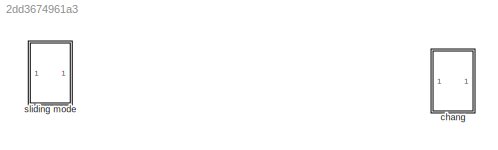
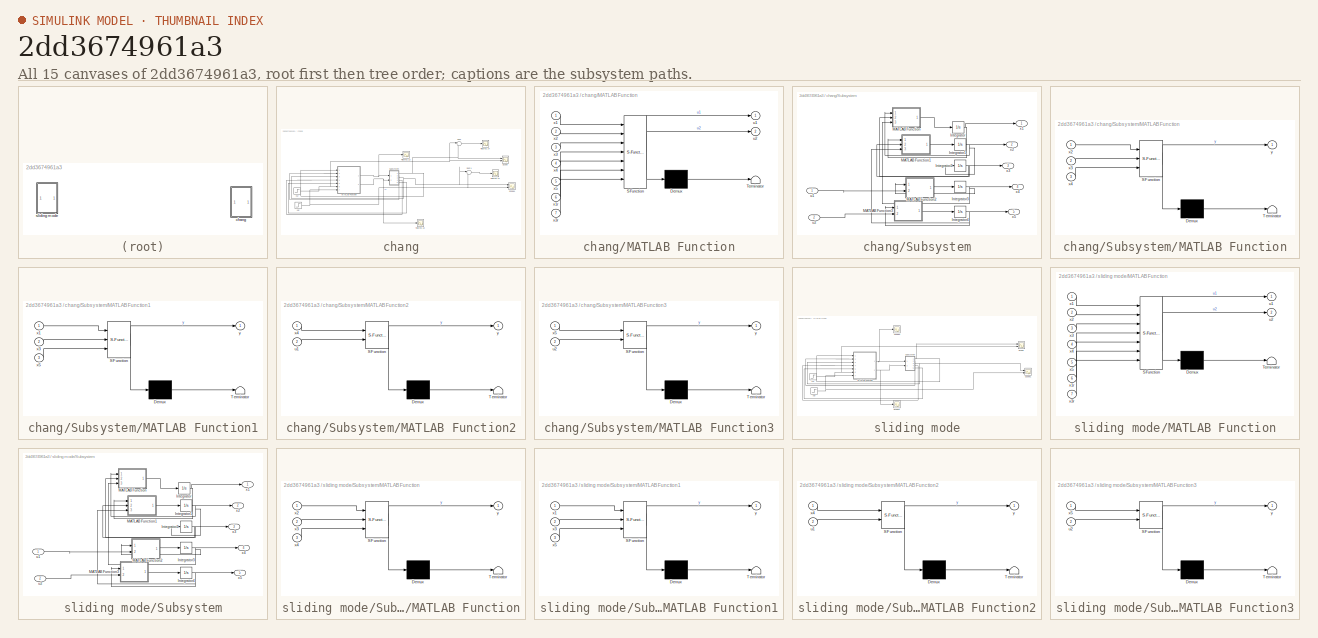
[diagram: thumbnail index - all 15 canvases of the model, root first then tree order]
MODEL slx_2dd3674961a3
KIND model
CONFIG AbsTol = auto
CONFIG EnableMultiTasking = off
CONFIG FixedStep = auto
CONFIG MaxStep = auto
CONFIG MinStep = auto
CONFIG RelTol = 1e-3
CONFIG SampleTimeConstraint = Unconstrained
CONFIG Solver = VariableStepAuto
CONFIG SolverName = VariableStepAuto
CONFIG StartTime = 0.0
CONFIG StopTime = 100
BLOCK [SubSystem] chang
  Ports = []
  RequestExecContextInheritance = off
BLOCK [Scope] chang/Figure3.13
  Floating = off
  NumInputPorts = 1
  Ports = [1]
  ScopeSpecificationString = Simulink.scopes.TimeScopeBlockCfg('CurrentConfiguration', extmgr.ConfigurationSet(extmgr.Configuration('Core','General UI',true),extmgr.Configuration('Core','Source UI',true),extmgr.Configuration('Sources','WiredSimulink',true,'DataLoggingVariableName','ScopeData6'),extmgr.Configuration('Visuals','Time Domain',true,'SerializedDisplays',{struct('MinYLimReal','-0.63617','MaxYLimReal','0.79271','YLab...<+1428ch>
BLOCK [Scope] chang/Figure3.14
  Floating = off
  NumInputPorts = 1
  Ports = [1]
  ScopeSpecificationString = Simulink.scopes.TimeScopeBlockCfg('CurrentConfiguration', extmgr.ConfigurationSet(extmgr.Configuration('Core','General UI',true,'FigureColor',[1 1 1]),extmgr.Configuration('Core','Source UI',true),extmgr.Configuration('Sources','WiredSimulink',true,'DataLoggingVariableName','ScopeData1'),extmgr.Configuration('Visuals','Time Domain',true,'SerializedDisplays',{struct('MinYLimReal','-1000000.00000','...<+1671ch>
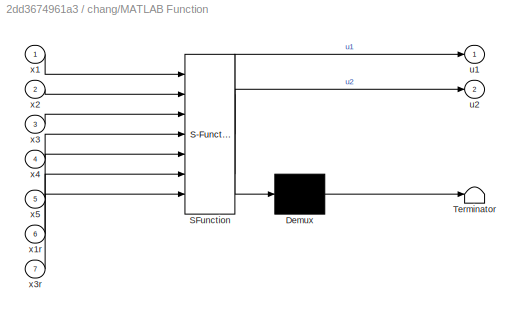
BLOCK [SubSystem] chang/MATLAB Function
  ErrorFcn = Stateflow.Translate.translate
  PermitHierarchicalResolution = ExplicitOnly
  Ports = [7, 2]
  RequestExecContextInheritance = off
  SFBlockType = MATLAB Function
  TreatAsAtomicUnit = on
BLOCK [Demux] chang/MATLAB Function/ Demux 
  Outputs = 1
  Ports = [1, 1]
BLOCK [S-Function] chang/MATLAB Function/ SFunction 
  EnableBusSupport = on
  FunctionName = sf_sfun
  PortCounts = [7 3]
  Ports = [7, 3]
  SFcnIsStateOwnerBlock = off
  SFunctionDeploymentMode = off
  Tag = Stateflow S-Function nouveaux_graphes2 6
BLOCK [Terminator] chang/MATLAB Function/ Terminator 
BLOCK [Outport] chang/MATLAB Function/u1
  IconDisplay = Port number
BLOCK [Outport] chang/MATLAB Function/u2
  IconDisplay = Port number
  Port = 2
BLOCK [Inport] chang/MATLAB Function/x1
  IconDisplay = Port number
BLOCK [Inport] chang/MATLAB Function/x1r
  IconDisplay = Port number
  Port = 6
BLOCK [Inport] chang/MATLAB Function/x2
  IconDisplay = Port number
  Port = 2
BLOCK [Inport] chang/MATLAB Function/x3
  IconDisplay = Port number
  Port = 3
BLOCK [Inport] chang/MATLAB Function/x3r
  IconDisplay = Port number
  Port = 7
BLOCK [Inport] chang/MATLAB Function/x4
  IconDisplay = Port number
  Port = 4
BLOCK [Inport] chang/MATLAB Function/x5
  IconDisplay = Port number
  Port = 5
BLOCK [Scope] chang/Scope
  Floating = off
  NumInputPorts = 2
  Ports = [2]
  ScopeSpecificationString = Simulink.scopes.TimeScopeBlockCfg('CurrentConfiguration', extmgr.ConfigurationSet(extmgr.Configuration('Core','General UI',true),extmgr.Configuration('Core','Source UI',true),extmgr.Configuration('Sources','WiredSimulink',true,'DataLoggingVariableName','ScopeData1'),extmgr.Configuration('Visuals','Time Domain',true,'SerializedDisplays',{struct('MinYLimReal','-1000000.00000','MaxYLimReal','9000000....<+1504ch>
BLOCK [Scope] chang/Scope1
  Floating = off
  NumInputPorts = 2
  Ports = [2]
  ScopeSpecificationString = Simulink.scopes.TimeScopeBlockCfg('CurrentConfiguration', extmgr.ConfigurationSet(extmgr.Configuration('Core','General UI',true),extmgr.Configuration('Core','Source UI',true),extmgr.Configuration('Sources','WiredSimulink',true,'DataLoggingVariableName','ScopeData2'),extmgr.Configuration('Visuals','Time Domain',true,'SerializedDisplays',{struct('MinYLimReal','-5.4945','MaxYLimReal','4.15913','YLabe...<+1456ch>
BLOCK [SubSystem] chang/Subsystem
  Ports = [2, 5]
  RequestExecContextInheritance = off
BLOCK [Integrator] chang/Subsystem/Integrator
  Ports = [1, 1]
BLOCK [Integrator] chang/Subsystem/Integrator1
  Ports = [1, 1]
BLOCK [Integrator] chang/Subsystem/Integrator2
  Ports = [1, 1]
BLOCK [Integrator] chang/Subsystem/Integrator3
  Ports = [1, 1]
BLOCK [Integrator] chang/Subsystem/Integrator4
  Ports = [1, 1]
BLOCK [SubSystem] chang/Subsystem/MATLAB Function
  ErrorFcn = Stateflow.Translate.translate
  PermitHierarchicalResolution = ExplicitOnly
  Ports = [3, 1]
  RequestExecContextInheritance = off
  SFBlockType = MATLAB Function
  TreatAsAtomicUnit = on
BLOCK [Demux] chang/Subsystem/MATLAB Function/ Demux 
  Outputs = 1
  Ports = [1, 1]
BLOCK [S-Function] chang/Subsystem/MATLAB Function/ SFunction 
  EnableBusSupport = on
  FunctionName = sf_sfun
  PortCounts = [3 2]
  Ports = [3, 2]
  SFcnIsStateOwnerBlock = off
  SFunctionDeploymentMode = off
  Tag = Stateflow S-Function nouveaux_graphes2 7
BLOCK [Terminator] chang/Subsystem/MATLAB Function/ Terminator 
BLOCK [Inport] chang/Subsystem/MATLAB Function/x2
  IconDisplay = Port number
BLOCK [Inport] chang/Subsystem/MATLAB Function/x3
  IconDisplay = Port number
  Port = 2
BLOCK [Inport] chang/Subsystem/MATLAB Function/x4
  IconDisplay = Port number
  Port = 3
BLOCK [Outport] chang/Subsystem/MATLAB Function/y
  IconDisplay = Port number
BLOCK [SubSystem] chang/Subsystem/MATLAB Function1
  ErrorFcn = Stateflow.Translate.translate
  PermitHierarchicalResolution = ExplicitOnly
  Ports = [3, 1]
  RequestExecContextInheritance = off
  SFBlockType = MATLAB Function
  TreatAsAtomicUnit = on
BLOCK [Demux] chang/Subsystem/MATLAB Function1/ Demux 
  Outputs = 1
  Ports = [1, 1]
BLOCK [S-Function] chang/Subsystem/MATLAB Function1/ SFunction 
  EnableBusSupport = on
  FunctionName = sf_sfun
  PortCounts = [3 2]
  Ports = [3, 2]
  SFcnIsStateOwnerBlock = off
  SFunctionDeploymentMode = off
  Tag = Stateflow S-Function nouveaux_graphes2 8
BLOCK [Terminator] chang/Subsystem/MATLAB Function1/ Terminator 
BLOCK [Inport] chang/Subsystem/MATLAB Function1/x1
  IconDisplay = Port number
BLOCK [Inport] chang/Subsystem/MATLAB Function1/x3
  IconDisplay = Port number
  Port = 2
BLOCK [Inport] chang/Subsystem/MATLAB Function1/x5
  IconDisplay = Port number
  Port = 3
BLOCK [Outport] chang/Subsystem/MATLAB Function1/y
  IconDisplay = Port number
BLOCK [SubSystem] chang/Subsystem/MATLAB Function2
  ErrorFcn = Stateflow.Translate.translate
  PermitHierarchicalResolution = ExplicitOnly
  Ports = [2, 1]
  RequestExecContextInheritance = off
  SFBlockType = MATLAB Function
  TreatAsAtomicUnit = on
BLOCK [Demux] chang/Subsystem/MATLAB Function2/ Demux 
  Outputs = 1
  Ports = [1, 1]
BLOCK [S-Function] chang/Subsystem/MATLAB Function2/ SFunction 
  EnableBusSupport = on
  FunctionName = sf_sfun
  PortCounts = [2 2]
  Ports = [2, 2]
  SFcnIsStateOwnerBlock = off
  SFunctionDeploymentMode = off
  Tag = Stateflow S-Function nouveaux_graphes2 9
BLOCK [Terminator] chang/Subsystem/MATLAB Function2/ Terminator 
BLOCK [Inport] chang/Subsystem/MATLAB Function2/u1
  IconDisplay = Port number
  Port = 2
BLOCK [Inport] chang/Subsystem/MATLAB Function2/x4
  IconDisplay = Port number
BLOCK [Outport] chang/Subsystem/MATLAB Function2/y
  IconDisplay = Port number
BLOCK [SubSystem] chang/Subsystem/MATLAB Function3
  ErrorFcn = Stateflow.Translate.translate
  PermitHierarchicalResolution = ExplicitOnly
  Ports = [2, 1]
  RequestExecContextInheritance = off
  SFBlockType = MATLAB Function
  TreatAsAtomicUnit = on
BLOCK [Demux] chang/Subsystem/MATLAB Function3/ Demux 
  Outputs = 1
  Ports = [1, 1]
BLOCK [S-Function] chang/Subsystem/MATLAB Function3/ SFunction 
  EnableBusSupport = on
  FunctionName = sf_sfun
  PortCounts = [2 2]
  Ports = [2, 2]
  SFcnIsStateOwnerBlock = off
  SFunctionDeploymentMode = off
  Tag = Stateflow S-Function nouveaux_graphes2 10
BLOCK [Terminator] chang/Subsystem/MATLAB Function3/ Terminator 
BLOCK [Inport] chang/Subsystem/MATLAB Function3/u2
  IconDisplay = Port number
  Port = 2
BLOCK [Inport] chang/Subsystem/MATLAB Function3/x5
  IconDisplay = Port number
BLOCK [Outport] chang/Subsystem/MATLAB Function3/y
  IconDisplay = Port number
BLOCK [Inport] chang/Subsystem/u1
  IconDisplay = Port number
BLOCK [Inport] chang/Subsystem/u2
  IconDisplay = Port number
  Port = 2
BLOCK [Outport] chang/Subsystem/x1
  IconDisplay = Port number
BLOCK [Outport] chang/Subsystem/x2
  IconDisplay = Port number
  Port = 2
BLOCK [Outport] chang/Subsystem/x3
  IconDisplay = Port number
  Port = 3
BLOCK [Outport] chang/Subsystem/x4
  IconDisplay = Port number
  Port = 4
BLOCK [Outport] chang/Subsystem/x5
  IconDisplay = Port number
  Port = 5
BLOCK [Sum] chang/Sum
  IconShape = round
  InputSameDT = off
  Inputs = |+-
  OutDataTypeStr = Inherit: Inherit via internal rule
  Ports = [2, 1]
  SaturateOnIntegerOverflow = off
BLOCK [Sum] chang/Sum1
  IconShape = round
  InputSameDT = off
  Inputs = -+
  OutDataTypeStr = Inherit: Inherit via internal rule
  Ports = [2, 1]
  SaturateOnIntegerOverflow = off
BLOCK [Scope] chang/figure3.13
  Floating = off
  NumInputPorts = 1
  Ports = [1]
  ScopeSpecificationString = Simulink.scopes.TimeScopeBlockCfg('CurrentConfiguration', extmgr.ConfigurationSet(extmgr.Configuration('Core','General UI',true),extmgr.Configuration('Core','Source UI',true),extmgr.Configuration('Sources','WiredSimulink',true,'DataLoggingVariableName','ScopeData7'),extmgr.Configuration('Visuals','Time Domain',true,'SerializedDisplays',{struct('MinYLimReal','-13147.81591','MaxYLimReal','14938.0879...<+1416ch>
BLOCK [Scope] chang/figure3.14
  Floating = off
  NumInputPorts = 1
  Ports = [1]
  ScopeSpecificationString = Simulink.scopes.TimeScopeBlockCfg('CurrentConfiguration', extmgr.ConfigurationSet(extmgr.Configuration('Core','General UI',true,'FigureColor',[1 1 1]),extmgr.Configuration('Core','Source UI',true),extmgr.Configuration('Sources','WiredSimulink',true,'DataLoggingVariableName','ScopeData2'),extmgr.Configuration('Visuals','Time Domain',true,'SerializedDisplays',{struct('MinYLimReal','-2.12203','MaxYLi...<+1657ch>
BLOCK [Step] chang/x1r
  After = 8*10^6
  SampleTime = 0
  Time = 0
BLOCK [Step] chang/x3r
  After = 0.36
  SampleTime = 0
  Time = 0
BLOCK [SubSystem] sliding mode
  Ports = []
  RequestExecContextInheritance = off
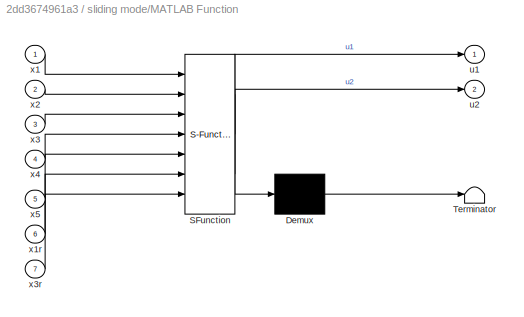
BLOCK [SubSystem] sliding mode/MATLAB Function
  ErrorFcn = Stateflow.Translate.translate
  PermitHierarchicalResolution = ExplicitOnly
  Ports = [7, 2]
  RequestExecContextInheritance = off
  SFBlockType = MATLAB Function
  TreatAsAtomicUnit = on
BLOCK [Demux] sliding mode/MATLAB Function/ Demux 
  Outputs = 1
  Ports = [1, 1]
BLOCK [S-Function] sliding mode/MATLAB Function/ SFunction 
  EnableBusSupport = on
  FunctionName = sf_sfun
  PortCounts = [7 3]
  Ports = [7, 3]
  SFcnIsStateOwnerBlock = off
  SFunctionDeploymentMode = off
  Tag = Stateflow S-Function nouveaux_graphes2 5
BLOCK [Terminator] sliding mode/MATLAB Function/ Terminator 
BLOCK [Outport] sliding mode/MATLAB Function/u1
  IconDisplay = Port number
BLOCK [Outport] sliding mode/MATLAB Function/u2
  IconDisplay = Port number
  Port = 2
BLOCK [Inport] sliding mode/MATLAB Function/x1
  IconDisplay = Port number
BLOCK [Inport] sliding mode/MATLAB Function/x1r
  IconDisplay = Port number
  Port = 6
BLOCK [Inport] sliding mode/MATLAB Function/x2
  IconDisplay = Port number
  Port = 2
BLOCK [Inport] sliding mode/MATLAB Function/x3
  IconDisplay = Port number
  Port = 3
BLOCK [Inport] sliding mode/MATLAB Function/x3r
  IconDisplay = Port number
  Port = 7
BLOCK [Inport] sliding mode/MATLAB Function/x4
  IconDisplay = Port number
  Port = 4
BLOCK [Inport] sliding mode/MATLAB Function/x5
  IconDisplay = Port number
  Port = 5
BLOCK [Scope] sliding mode/Scope
  Floating = off
  NumInputPorts = 2
  Ports = [2]
  ScopeSpecificationString = Simulink.scopes.TimeScopeBlockCfg('CurrentConfiguration', extmgr.ConfigurationSet(extmgr.Configuration('Core','General UI',true),extmgr.Configuration('Core','Source UI',true),extmgr.Configuration('Sources','WiredSimulink',true),extmgr.Configuration('Visuals','Time Domain',true,'SerializedDisplays',{struct('MinYLimReal','-8810149.76439','MaxYLimReal','18587409.79042','YLabelReal','','MinYLimMag',' ...<+1471ch>
BLOCK [Scope] sliding mode/Scope1
  Floating = off
  NumInputPorts = 2
  Ports = [2]
  ScopeSpecificationString = Simulink.scopes.TimeScopeBlockCfg('CurrentConfiguration', extmgr.ConfigurationSet(extmgr.Configuration('Core','General UI',true),extmgr.Configuration('Core','Source UI',true),extmgr.Configuration('Sources','WiredSimulink',true,'DataLoggingVariableName','ScopeData1'),extmgr.Configuration('Visuals','Time Domain',true,'SerializedDisplays',{struct('MinYLimReal','-28.01116','MaxYLimReal','3.51858','YLa...<+1464ch>
BLOCK [Scope] sliding mode/Scope2
  Floating = off
  NumInputPorts = 1
  Ports = [1]
  ScopeSpecificationString = Simulink.scopes.TimeScopeBlockCfg('CurrentConfiguration', extmgr.ConfigurationSet(extmgr.Configuration('Core','General UI',true),extmgr.Configuration('Core','Source UI',true),extmgr.Configuration('Sources','WiredSimulink',true,'DataLoggingVariableName','ScopeData2'),extmgr.Configuration('Visuals','Time Domain',true,'SerializedDisplays',{struct('MinYLimReal','-2.72038','MaxYLimReal','2.5943','YLabe...<+1459ch>
BLOCK [Scope] sliding mode/Scope3
  Floating = off
  NumInputPorts = 1
  Ports = [1]
  ScopeSpecificationString = Simulink.scopes.TimeScopeBlockCfg('CurrentConfiguration', extmgr.ConfigurationSet(extmgr.Configuration('Core','General UI',true),extmgr.Configuration('Core','Source UI',true),extmgr.Configuration('Sources','WiredSimulink',true,'DataLoggingVariableName','ScopeData3'),extmgr.Configuration('Visuals','Time Domain',true,'SerializedDisplays',{struct('MinYLimReal','-7768.65783','MaxYLimReal','7219.35675'...<+1483ch>
BLOCK [SubSystem] sliding mode/Subsystem
  Ports = [2, 5]
  RequestExecContextInheritance = off
BLOCK [Integrator] sliding mode/Subsystem/Integrator
  Ports = [1, 1]
BLOCK [Integrator] sliding mode/Subsystem/Integrator1
  Ports = [1, 1]
BLOCK [Integrator] sliding mode/Subsystem/Integrator2
  Ports = [1, 1]
BLOCK [Integrator] sliding mode/Subsystem/Integrator3
  Ports = [1, 1]
BLOCK [Integrator] sliding mode/Subsystem/Integrator4
  Ports = [1, 1]
BLOCK [SubSystem] sliding mode/Subsystem/MATLAB Function
  ErrorFcn = Stateflow.Translate.translate
  PermitHierarchicalResolution = ExplicitOnly
  Ports = [3, 1]
  RequestExecContextInheritance = off
  SFBlockType = MATLAB Function
  TreatAsAtomicUnit = on
BLOCK [Demux] sliding mode/Subsystem/MATLAB Function/ Demux 
  Outputs = 1
  Ports = [1, 1]
BLOCK [S-Function] sliding mode/Subsystem/MATLAB Function/ SFunction 
  EnableBusSupport = on
  FunctionName = sf_sfun
  PortCounts = [3 2]
  Ports = [3, 2]
  SFcnIsStateOwnerBlock = off
  SFunctionDeploymentMode = off
  Tag = Stateflow S-Function nouveaux_graphes2 2
BLOCK [Terminator] sliding mode/Subsystem/MATLAB Function/ Terminator 
BLOCK [Inport] sliding mode/Subsystem/MATLAB Function/x2
  IconDisplay = Port number
BLOCK [Inport] sliding mode/Subsystem/MATLAB Function/x3
  IconDisplay = Port number
  Port = 2
BLOCK [Inport] sliding mode/Subsystem/MATLAB Function/x4
  IconDisplay = Port number
  Port = 3
BLOCK [Outport] sliding mode/Subsystem/MATLAB Function/y
  IconDisplay = Port number
BLOCK [SubSystem] sliding mode/Subsystem/MATLAB Function1
  ErrorFcn = Stateflow.Translate.translate
  PermitHierarchicalResolution = ExplicitOnly
  Ports = [3, 1]
  RequestExecContextInheritance = off
  SFBlockType = MATLAB Function
  TreatAsAtomicUnit = on
BLOCK [Demux] sliding mode/Subsystem/MATLAB Function1/ Demux 
  Outputs = 1
  Ports = [1, 1]
BLOCK [S-Function] sliding mode/Subsystem/MATLAB Function1/ SFunction 
  EnableBusSupport = on
  FunctionName = sf_sfun
  PortCounts = [3 2]
  Ports = [3, 2]
  SFcnIsStateOwnerBlock = off
  SFunctionDeploymentMode = off
  Tag = Stateflow S-Function nouveaux_graphes2 1
BLOCK [Terminator] sliding mode/Subsystem/MATLAB Function1/ Terminator 
BLOCK [Inport] sliding mode/Subsystem/MATLAB Function1/x1
  IconDisplay = Port number
BLOCK [Inport] sliding mode/Subsystem/MATLAB Function1/x3
  IconDisplay = Port number
  Port = 2
BLOCK [Inport] sliding mode/Subsystem/MATLAB Function1/x5
  IconDisplay = Port number
  Port = 3
BLOCK [Outport] sliding mode/Subsystem/MATLAB Function1/y
  IconDisplay = Port number
BLOCK [SubSystem] sliding mode/Subsystem/MATLAB Function2
  ErrorFcn = Stateflow.Translate.translate
  PermitHierarchicalResolution = ExplicitOnly
  Ports = [2, 1]
  RequestExecContextInheritance = off
  SFBlockType = MATLAB Function
  TreatAsAtomicUnit = on
BLOCK [Demux] sliding mode/Subsystem/MATLAB Function2/ Demux 
  Outputs = 1
  Ports = [1, 1]
BLOCK [S-Function] sliding mode/Subsystem/MATLAB Function2/ SFunction 
  EnableBusSupport = on
  FunctionName = sf_sfun
  PortCounts = [2 2]
  Ports = [2, 2]
  SFcnIsStateOwnerBlock = off
  SFunctionDeploymentMode = off
  Tag = Stateflow S-Function nouveaux_graphes2 3
BLOCK [Terminator] sliding mode/Subsystem/MATLAB Function2/ Terminator 
BLOCK [Inport] sliding mode/Subsystem/MATLAB Function2/u1
  IconDisplay = Port number
  Port = 2
BLOCK [Inport] sliding mode/Subsystem/MATLAB Function2/x4
  IconDisplay = Port number
BLOCK [Outport] sliding mode/Subsystem/MATLAB Function2/y
  IconDisplay = Port number
BLOCK [SubSystem] sliding mode/Subsystem/MATLAB Function3
  ErrorFcn = Stateflow.Translate.translate
  PermitHierarchicalResolution = ExplicitOnly
  Ports = [2, 1]
  RequestExecContextInheritance = off
  SFBlockType = MATLAB Function
  TreatAsAtomicUnit = on
BLOCK [Demux] sliding mode/Subsystem/MATLAB Function3/ Demux 
  Outputs = 1
  Ports = [1, 1]
BLOCK [S-Function] sliding mode/Subsystem/MATLAB Function3/ SFunction 
  EnableBusSupport = on
  FunctionName = sf_sfun
  PortCounts = [2 2]
  Ports = [2, 2]
  SFcnIsStateOwnerBlock = off
  SFunctionDeploymentMode = off
  Tag = Stateflow S-Function nouveaux_graphes2 4
BLOCK [Terminator] sliding mode/Subsystem/MATLAB Function3/ Terminator 
BLOCK [Inport] sliding mode/Subsystem/MATLAB Function3/u2
  IconDisplay = Port number
  Port = 2
BLOCK [Inport] sliding mode/Subsystem/MATLAB Function3/x5
  IconDisplay = Port number
BLOCK [Outport] sliding mode/Subsystem/MATLAB Function3/y
  IconDisplay = Port number
BLOCK [Inport] sliding mode/Subsystem/u1
  IconDisplay = Port number
BLOCK [Inport] sliding mode/Subsystem/u2
  IconDisplay = Port number
  Port = 2
BLOCK [Outport] sliding mode/Subsystem/x1
  IconDisplay = Port number
BLOCK [Outport] sliding mode/Subsystem/x2
  IconDisplay = Port number
  Port = 2
BLOCK [Outport] sliding mode/Subsystem/x3
  IconDisplay = Port number
  Port = 3
BLOCK [Outport] sliding mode/Subsystem/x4
  IconDisplay = Port number
  Port = 4
BLOCK [Outport] sliding mode/Subsystem/x5
  IconDisplay = Port number
  Port = 5
BLOCK [Step] sliding mode/x1r
  After = 8*10^6
  SampleTime = 0
  Time = 0
BLOCK [Step] sliding mode/x3r
  After = 0.36
  SampleTime = 0
  Time = 0
NET chang/MATLAB Function:1 -> chang/Figure3.13:1, chang/Subsystem:1
NET chang/MATLAB Function:2 -> chang/Subsystem:2, chang/figure3.13:1
NET chang/Subsystem/Integrator1:1 -> chang/Subsystem/Integrator2:1, chang/Subsystem/MATLAB Function:1, chang/Subsystem/x2:1
NET chang/Subsystem/Integrator2:1 -> chang/Subsystem/MATLAB Function1:2, chang/Subsystem/MATLAB Function:2, chang/Subsystem/x3:1
NET chang/Subsystem/Integrator3:1 -> chang/Subsystem/MATLAB Function2:1, chang/Subsystem/MATLAB Function:3, chang/Subsystem/x4:1
NET chang/Subsystem/Integrator4:1 -> chang/Subsystem/MATLAB Function1:3, chang/Subsystem/MATLAB Function3:1, chang/Subsystem/x5:1
NET chang/Subsystem/Integrator:1 -> chang/Subsystem/MATLAB Function1:1, chang/Subsystem/x1:1
LINE chang/Subsystem/MATLAB Function1:1 -> chang/Subsystem/Integrator1:1
LINE chang/Subsystem/MATLAB Function2:1 -> chang/Subsystem/Integrator3:1
LINE chang/Subsystem/MATLAB Function3:1 -> chang/Subsystem/Integrator4:1
LINE chang/Subsystem/MATLAB Function:1 -> chang/Subsystem/Integrator:1
LINE chang/Subsystem/u1:1 -> chang/Subsystem/MATLAB Function2:2
LINE chang/Subsystem/u2:1 -> chang/Subsystem/MATLAB Function3:2
NET chang/Subsystem:1 -> chang/MATLAB Function:1, chang/Scope:1, chang/Sum:2
LINE chang/Subsystem:2 -> chang/MATLAB Function:2
NET chang/Subsystem:3 -> chang/MATLAB Function:3, chang/Scope1:1, chang/Sum1:1
LINE chang/Subsystem:4 -> chang/MATLAB Function:4
LINE chang/Subsystem:5 -> chang/MATLAB Function:5
LINE chang/Sum1:1 -> chang/figure3.14:1
LINE chang/Sum:1 -> chang/Figure3.14:1
NET chang/x1r:1 -> chang/MATLAB Function:6, chang/Scope:2, chang/Sum:1
NET chang/x3r:1 -> chang/MATLAB Function:7, chang/Scope1:2, chang/Sum1:2
NET sliding mode/MATLAB Function:1 -> sliding mode/Scope2:1, sliding mode/Subsystem:1
NET sliding mode/MATLAB Function:2 -> sliding mode/Scope3:1, sliding mode/Subsystem:2
NET sliding mode/Subsystem/Integrator1:1 -> sliding mode/Subsystem/Integrator2:1, sliding mode/Subsystem/MATLAB Function:1, sliding mode/Subsystem/x2:1
NET sliding mode/Subsystem/Integrator2:1 -> sliding mode/Subsystem/MATLAB Function1:2, sliding mode/Subsystem/MATLAB Function:2, sliding mode/Subsystem/x3:1
NET sliding mode/Subsystem/Integrator3:1 -> sliding mode/Subsystem/MATLAB Function2:1, sliding mode/Subsystem/MATLAB Function:3, sliding mode/Subsystem/x4:1
NET sliding mode/Subsystem/Integrator4:1 -> sliding mode/Subsystem/MATLAB Function1:3, sliding mode/Subsystem/MATLAB Function3:1, sliding mode/Subsystem/x5:1
NET sliding mode/Subsystem/Integrator:1 -> sliding mode/Subsystem/MATLAB Function1:1, sliding mode/Subsystem/x1:1
LINE sliding mode/Subsystem/MATLAB Function1:1 -> sliding mode/Subsystem/Integrator1:1
LINE sliding mode/Subsystem/MATLAB Function2:1 -> sliding mode/Subsystem/Integrator3:1
LINE sliding mode/Subsystem/MATLAB Function3:1 -> sliding mode/Subsystem/Integrator4:1
LINE sliding mode/Subsystem/MATLAB Function:1 -> sliding mode/Subsystem/Integrator:1
LINE sliding mode/Subsystem/u1:1 -> sliding mode/Subsystem/MATLAB Function2:2
LINE sliding mode/Subsystem/u2:1 -> sliding mode/Subsystem/MATLAB Function3:2
NET sliding mode/Subsystem:1 -> sliding mode/MATLAB Function:1, sliding mode/Scope:1
LINE sliding mode/Subsystem:2 -> sliding mode/MATLAB Function:2
NET sliding mode/Subsystem:3 -> sliding mode/MATLAB Function:3, sliding mode/Scope1:1
LINE sliding mode/Subsystem:4 -> sliding mode/MATLAB Function:4
LINE sliding mode/Subsystem:5 -> sliding mode/MATLAB Function:5
NET sliding mode/x1r:1 -> sliding mode/MATLAB Function:6, sliding mode/Scope:2
NET sliding mode/x3r:1 -> sliding mode/MATLAB Function:7, sliding mode/Scope1:2
note: NET lines group one-source signal fan-out (src -> all destinations, sorted); 1:1 wires keep LINE
CHART sliding mode/Subsystem/MATLAB Function1 states=1 transitions=1
  STATE_LABEL 'eML_blk_kernel()'
  STATE_LABEL 'SCRIPT:\nfunction y = fcn(x1,x3,x5)\ng = 9.8;\nrau = 7800;\nL = 5.8;\nMl = 1862.9;\nRG = 0.194;\nJ = 172.65;\nRl = 0.611;\nH1 = 0.195;\nL1 = 2.34;\nL4 = 3.46;\nRr=0.0925;\nh = 0.00728;\nw = 1.5;\nA = h*w;\nalpha = atan((Rl*sin(x3) - H1 + Rr)/(L1 + Rl*cos(x3)));\nbeta = atan((Rl*sin(x3) - H1 + Rr)/(L4 - Rl*cos(x3)));\nF3 = Rl*(sin(x3+beta) - sin(x3-alpha));\nF1 = 0.5*g*rau*L*h*w*Rl*cos(x3) + g*Ml*RG*cos(x3);\ny = (x5 ...<+19ch>'
CHART sliding mode/Subsystem/MATLAB Function states=1 transitions=1
  STATE_LABEL 'eML_blk_kernel()'
  STATE_LABEL 'SCRIPT:\nfunction y = fcn(x2,x3,x4)\nE = 1.2*10^10;\nL = 5.8;\nRl = 0.611;\nH1 = 0.195;\nL1 = 2.34;\nL4 = 3.46;\nRr=0.0925;\nalpha = atan((Rl*sin(x3) - H1 + Rr)/(L1 + Rl*cos(x3)));\nbeta = atan((Rl*sin(x3) - H1 + Rr)/(L4 - Rl*cos(x3)));\nF3 = Rl*(sin(x3+beta) - sin(x3-alpha));\ny = E*(F3*x2 - x4)/L;\n'
CHART sliding mode/Subsystem/MATLAB Function2 states=1 transitions=1
  STATE_LABEL 'eML_blk_kernel()'
  STATE_LABEL 'SCRIPT:\nfunction y = fcn(x4,u1)\nTASR = 0.04;\ny = (-x4 + u1)/TASR;\n\n'
CHART sliding mode/Subsystem/MATLAB Function3 states=1 transitions=1
  STATE_LABEL 'eML_blk_kernel()'
  STATE_LABEL 'SCRIPT:\nfunction y = fcn(x5,u2)\nTATR = 0.01;\ny = (-x5 + u2)/TATR;\n\n'
CHART sliding mode/MATLAB Function states=1 transitions=1
  STATE_LABEL 'eML_blk_kernel()'
  STATE_LABEL 'SCRIPT:\nfunction [u1,u2] = fcn(x1,x2,x3,x4,x5,x1r,x3r)\nE = 1.2*10^10;\nTATR = 0.01;\nTASR = 0.04;\ng = 9.8;\nrau = 7800;\nL = 5.8;\nMl = 1862.9;\nRG = 0.194;\nJ = 172.65;\nRl = 0.611;\nH1 = 0.195;\nL1 = 2.34;\nL4 = 3.46;\nRr=0.0925;\nh = 0.00728;\nw = 1.5;\nA = h*w;\nlambda1 = 100;% lambda1 = 0.1;\nlambda2 = 1;\nK = 1;% K = 0.2;\nalpha = atan((Rl*sin(x3) - H1 + Rr)/(L1 + Rl*cos(x3)));\nbeta = atan((Rl*sin(x3) - H1 + R...<+1172ch>'
CHART chang/MATLAB Function states=1 transitions=1
  STATE_LABEL 'eML_blk_kernel()'
  STATE_LABEL 'SCRIPT:\nfunction [u1,u2] = fcn(x1,x2,x3,x4,x5,x1r,x3r)\nE = 1.2*10^10;\nTATR = 0.01;\nTASR = 0.04;\ng = 9.8;\nrau = 7800;\nL = 5.8;\nMl = 1862.9;\nRG = 0.194;\nJ = 172.65;\nRl = 0.611;\nH1 = 0.195;\nL1 = 2.34;\nL4 = 3.46;\nRr=0.0925;\nh = 0.00728;\nw = 1.5;\nA = h*w;\nalpha = atan((Rl*sin(x3) - H1 + Rr)/(L1 + Rl*cos(x3)));\nbeta = atan((Rl*sin(x3) - H1 + Rr)/(L4 - Rl*cos(x3)));\nF3 = Rl*(sin(x3+beta) - sin(x3-alpha))...<+1148ch>'
CHART chang/Subsystem/MATLAB Function states=1 transitions=1
  STATE_LABEL 'eML_blk_kernel()'
  STATE_LABEL 'SCRIPT:\nfunction y = fcn(x2,x3,x4)\nE = 1.2*10^10;\nL = 5.8;\nRl = 0.611;\nH1 = 0.195;\nL1 = 2.34;\nL4 = 3.46;\nRr=0.0925;\nalpha = atan((Rl*sin(x3) - H1 + Rr)/(L1 + Rl*cos(x3)));\nbeta = atan((Rl*sin(x3) - H1 + Rr)/(L4 - Rl*cos(x3)));\nF3 = Rl*(sin(x3+beta) - sin(x3-alpha));\ny = E*(F3*x2 - x4)/L;\n'
CHART chang/Subsystem/MATLAB Function1 states=1 transitions=1
  STATE_LABEL 'eML_blk_kernel()'
  STATE_LABEL 'SCRIPT:\nfunction y = fcn(x1,x3,x5)\ng = 9.8;\nrau = 7800;\nL = 5.8;\nMl = 1862.9;\nRG = 0.194;\nJ = 172.65;\nRl = 0.611;\nH1 = 0.195;\nL1 = 2.34;\nL4 = 3.46;\nRr=0.0925;\nh = 0.00728;\nw = 1.5;\nA = h*w;\nalpha = atan((Rl*sin(x3) - H1 + Rr)/(L1 + Rl*cos(x3)));\nbeta = atan((Rl*sin(x3) - H1 + Rr)/(L4 - Rl*cos(x3)));\nF3 = Rl*(sin(x3+beta) - sin(x3-alpha));\nF1 = 0.5*g*rau*L*h*w*Rl*cos(x3) + g*Ml*RG*cos(x3);\ny = (x5 ...<+19ch>'
CHART chang/Subsystem/MATLAB Function2 states=1 transitions=1
  STATE_LABEL 'eML_blk_kernel()'
  STATE_LABEL 'SCRIPT:\nfunction y = fcn(x4,u1)\nTASR = 0.04;\ny = (-x4 + u1)/TASR;\n\n'
CHART chang/Subsystem/MATLAB Function3 states=1 transitions=1
  STATE_LABEL 'eML_blk_kernel()'
  STATE_LABEL 'SCRIPT:\nfunction y = fcn(x5,u2)\nTATR = 0.01;\ny = (-x5 + u2)/TATR;\n\n'
